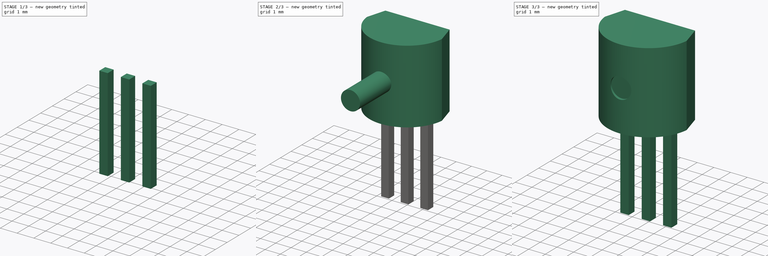
[diagram: build sequence overview — one tinted view per stage of 3, left to right]
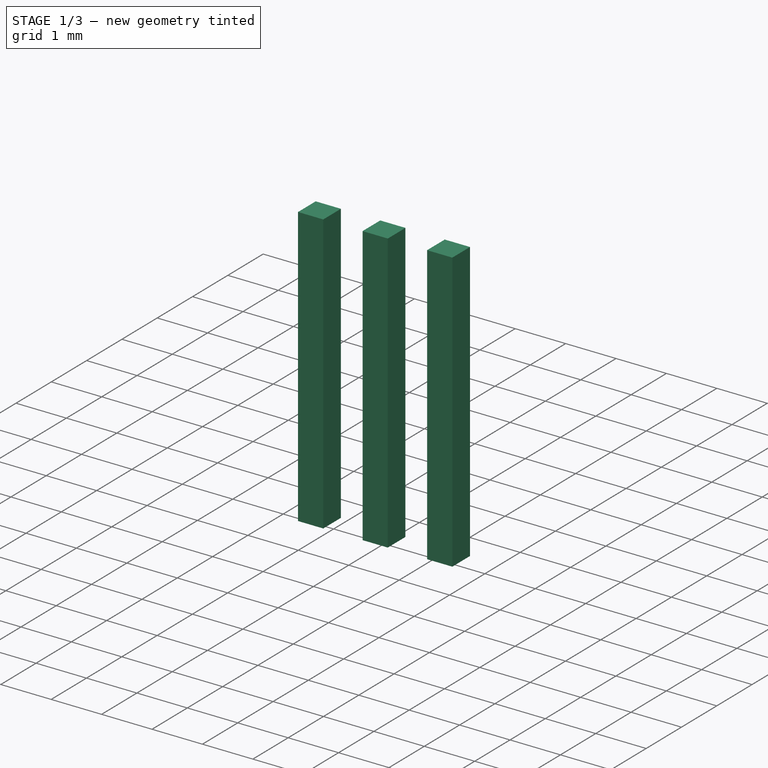
[diagram: stage 1 of 3 — iso view after this stage's code; geometry added in this stage tinted green]
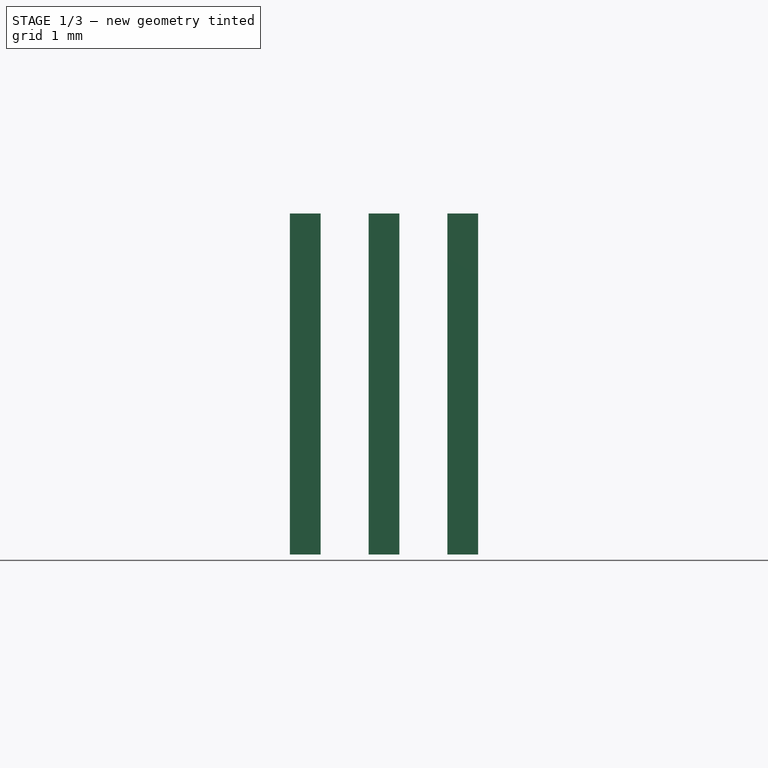
[diagram: stage 1 of 3 — front view after this stage's code; geometry added in this stage tinted green]
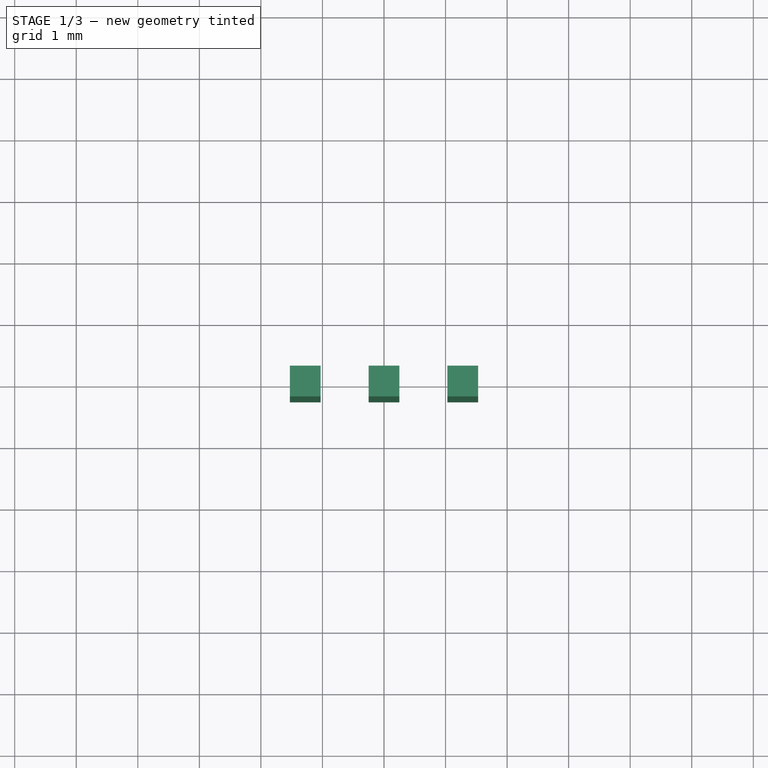
[diagram: stage 1 of 3 — top view after this stage's code; geometry added in this stage tinted green]
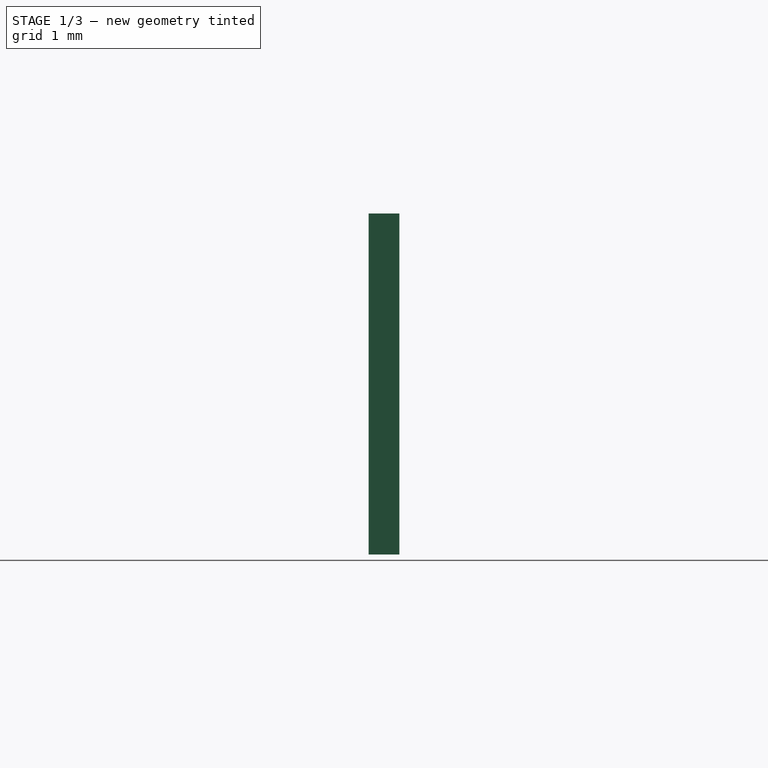
[diagram: stage 1 of 3 — right view after this stage's code; geometry added in this stage tinted green]
FCSTD DOCUMENT  (FreeCAD 0.16R6703 (Git))
Label: TO-92-2
License: All rights reserved
LicenseURL: http://en.wikipedia.org/wiki/All_rights_reserved
objects: Sketcher::SketchObject×2, PartDesign::Pad×2, Part::FeaturePython×2, Part::Cylinder×1, Part::Cut×1, App::DocumentObjectGroup×1
note: 10 computed .brp shape members not serialized (recipe doc carries the construction recipe); baked Part::Feature solids carry a one-line shape summary decoded from their .brp

FEATURE [PartDesign::Pad] Pad001  label="Pins-src"
  Length = 0.5
  Length2 = 100
  Midplane = true
  Placement = pos=(0,0,0) rot=(1,0,0;1.5708rad)
  Sketch = -> Sketch001
  Type = 0
FEATURE [App::DocumentObjectGroup] Group  label="src"
  Group = -> [Cut,Pad001]
FEATURE [Part::FeaturePython] Clone001  label="Pins"  # Draft clone (typed FeaturePython)
  Objects = -> [Pad001]
  Placement = pos=(0,0,0) rot=(1,0,0;1.5708rad)
  Scale = (1,1,1)
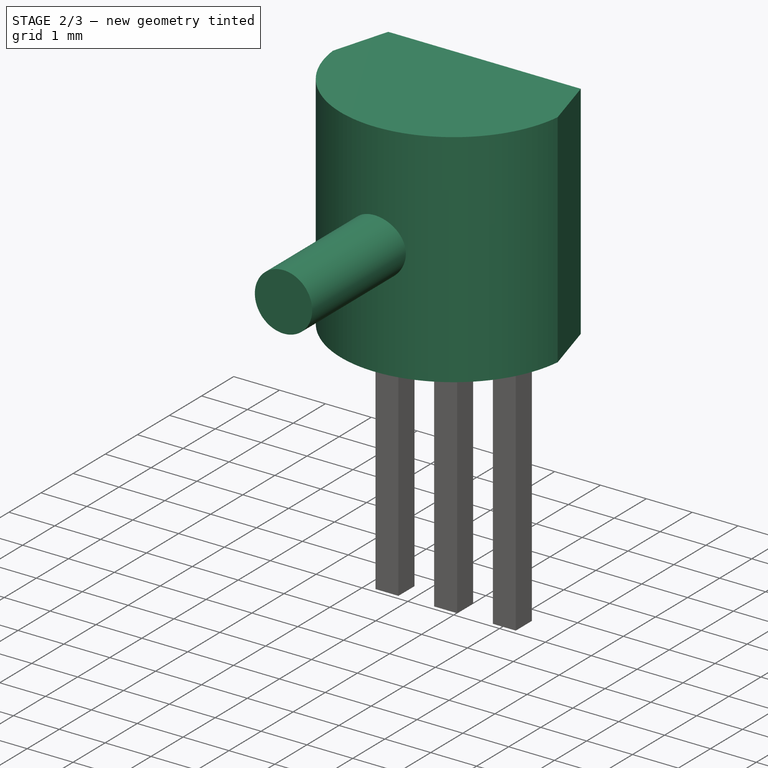
[diagram: stage 2 of 3 — iso view after this stage's code; geometry added in this stage tinted green]
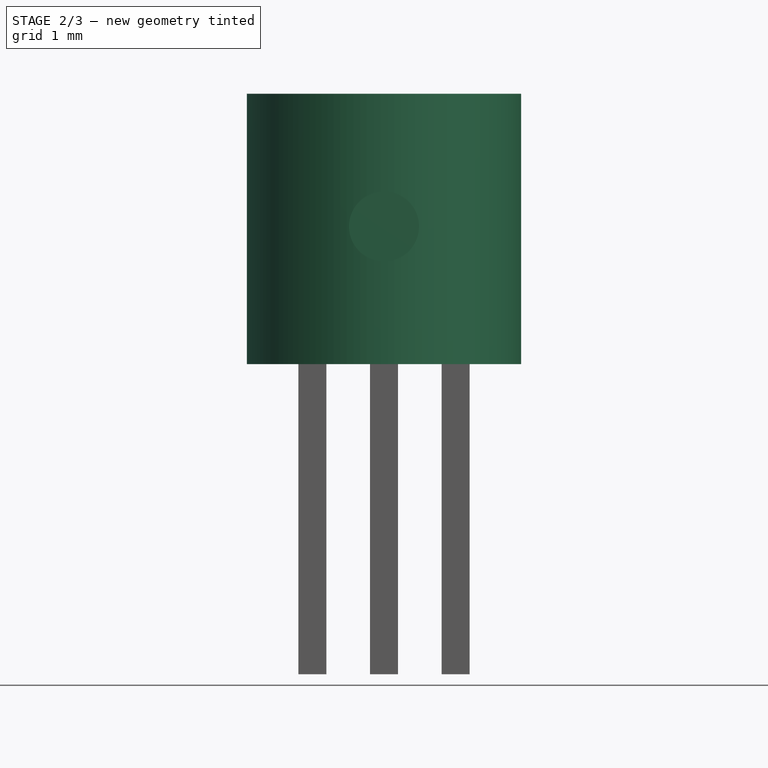
[diagram: stage 2 of 3 — front view after this stage's code; geometry added in this stage tinted green]
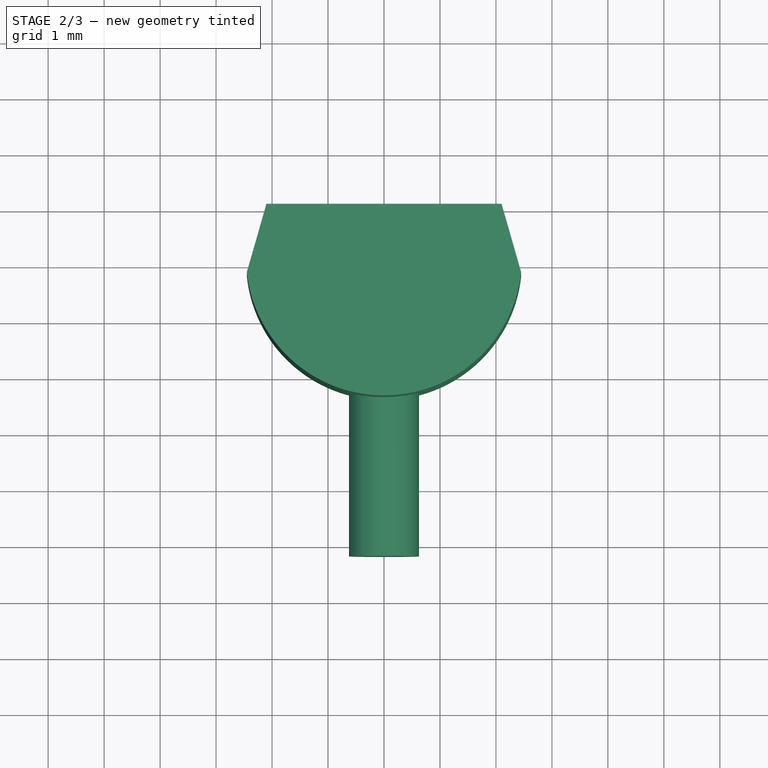
[diagram: stage 2 of 3 — top view after this stage's code; geometry added in this stage tinted green]
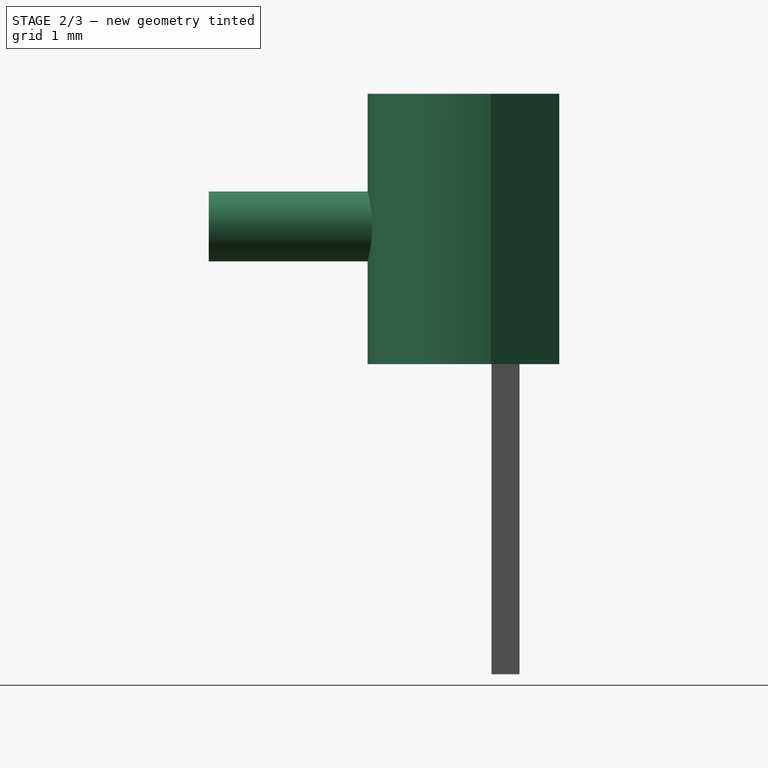
[diagram: stage 2 of 3 — right view after this stage's code; geometry added in this stage tinted green]
FEATURE [Sketcher::SketchObject] Sketch  label="Head-base-sketch"
  Placement = pos=(0,0,2.54) rot=(0,0,1;0rad)
  sketch-geometry (5):
    g0: LineSegment [constr] StartX=-2.45 StartY=-0.26 StartZ=0 EndX=2.45 EndY=-0.26 EndZ=0
    g1: ArcOfCircle CenterX=0 CenterY=0 CenterZ=0 NormalX=0 NormalY=0 NormalZ=1 Radius=2.46376 StartAngle=3.24732 EndAngle=6.17746
    g2: LineSegment StartX=-2.45 StartY=-0.26 StartZ=0 EndX=-2.1 EndY=0.96 EndZ=0
    g3: LineSegment StartX=-2.1 StartY=0.96 StartZ=0 EndX=2.1 EndY=0.96 EndZ=0
    g4: LineSegment StartX=2.1 StartY=0.96 StartZ=0 EndX=2.45 EndY=-0.26 EndZ=0
  constraints (15):
    c: Horizontal(g0)
    c: DistanceY(g0,g-1) = 0.26
    c: DistanceX(g0,g-1) = 2.45
    c: PointOnObject(g1,g-2)
    c: Coincident(g1,g0)
    c: Coincident(g1,g-1)
    c: Coincident(g1,g0)
    c: Coincident(g0,g2)
    c: Coincident(g2,g3)
    c: Horizontal(g3)
    c: Coincident(g3,g4)
    c: Coincident(g4,g0)
    c: Symmetric(g2,g3,g-2)
    c: DistanceX(g2,g-1) = 2.1
    c: DistanceY(g0,g2) = 1.22
FEATURE [PartDesign::Pad] Pad  label="Head-body"
  Length = 4.83
  Length2 = 100
  Placement = pos=(0,0,2.54) rot=(0,0,1;0rad)
  Sketch = -> Sketch
  Type = 0
FEATURE [Part::Cylinder] Cylinder
  Angle = 360
  Height = 3
  Placement = pos=(0,-2.3,5) rot=(1,0,0;1.5708rad)
  Radius = 0.625
  expr: Radius = 1.25 / 2
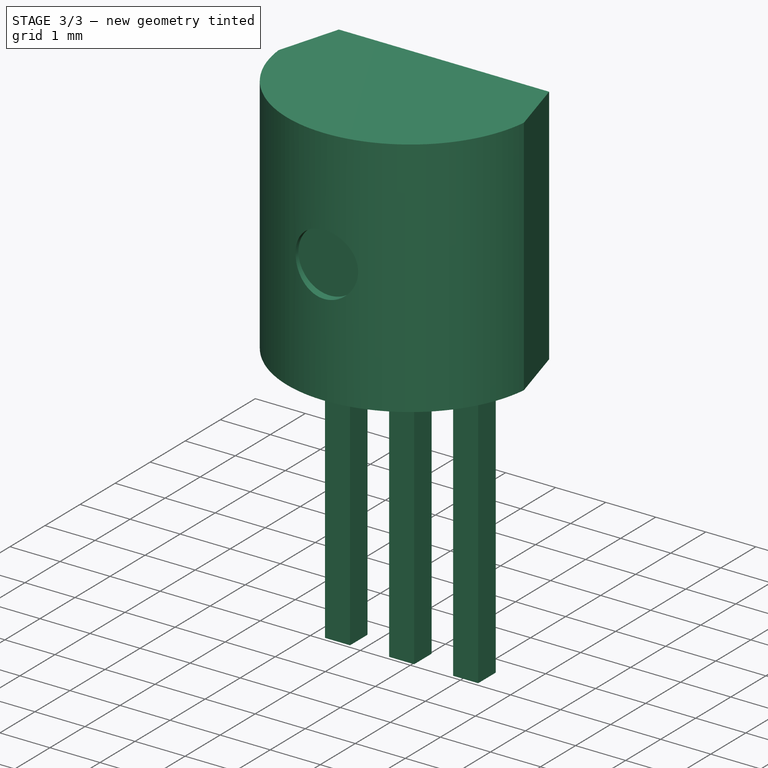
[diagram: stage 3 of 3 — iso view after this stage's code; geometry added in this stage tinted green]
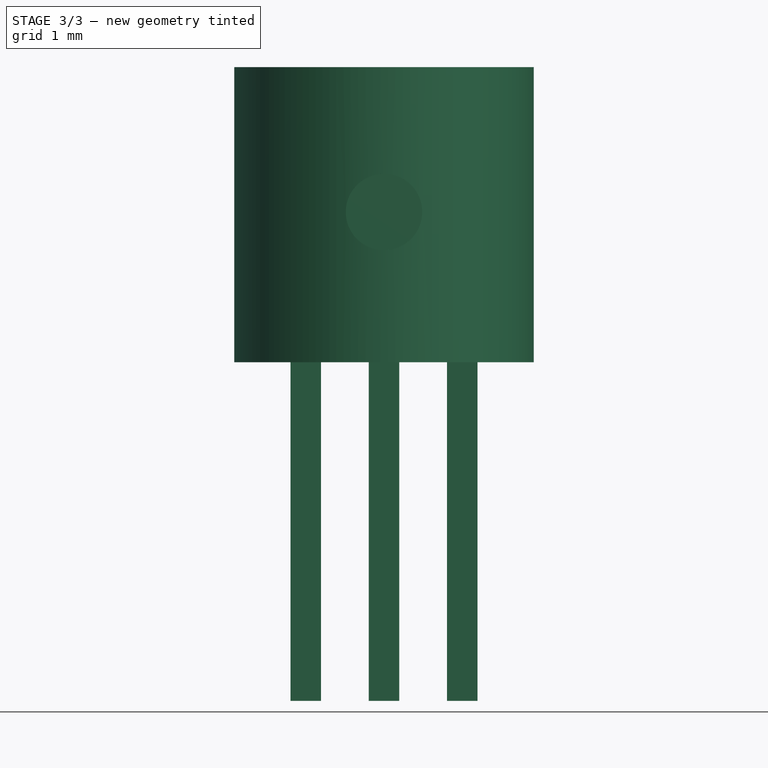
[diagram: stage 3 of 3 — front view after this stage's code; geometry added in this stage tinted green]
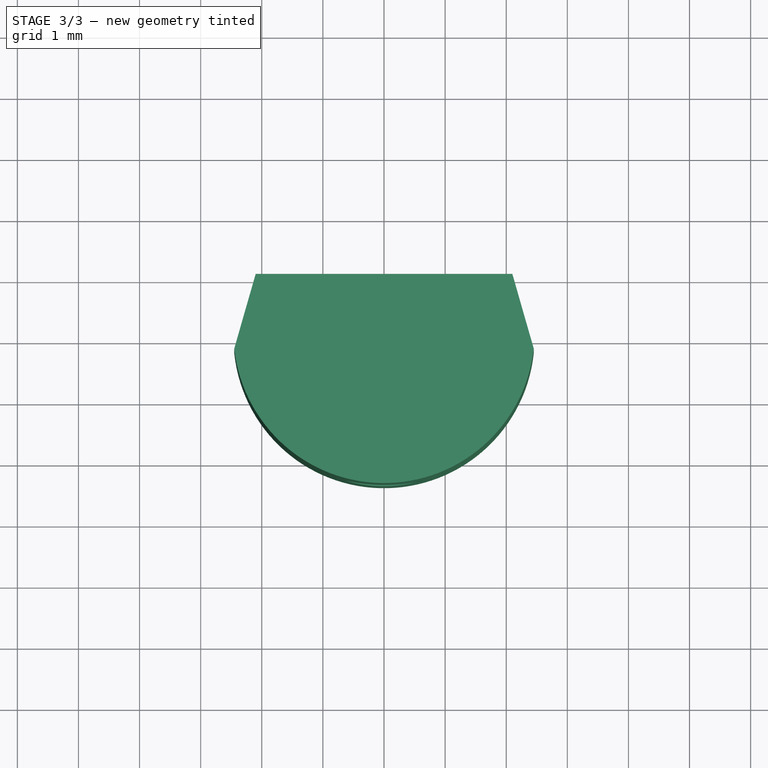
[diagram: stage 3 of 3 — top view after this stage's code; geometry added in this stage tinted green]
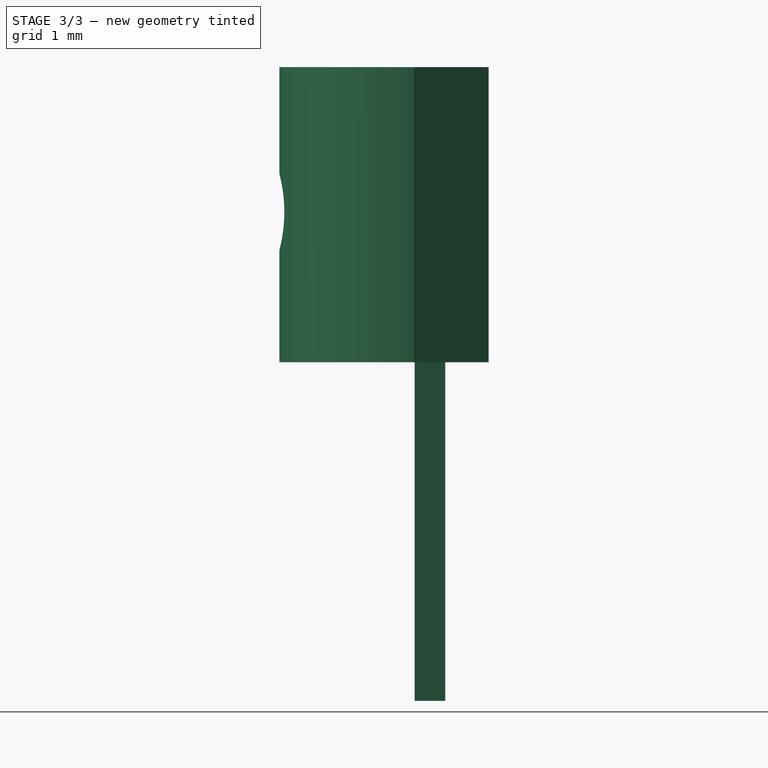
[diagram: stage 3 of 3 — right view after this stage's code; geometry added in this stage tinted green]
FEATURE [Part::Cut] Cut  label="Head-src"
  Base = -> Pad
  Tool = -> Cylinder
FEATURE [Sketcher::SketchObject] Sketch001  label="pins-sketch"
  Placement = pos=(0,0,0) rot=(1,0,0;1.5708rad)
  sketch-geometry (12):
    g0: LineSegment StartX=-0.25 StartY=2.54 StartZ=0 EndX=0.25 EndY=2.54 EndZ=0
    g1: LineSegment StartX=0.25 StartY=2.54 StartZ=0 EndX=0.25 EndY=-3 EndZ=0
    g2: LineSegment StartX=0.25 StartY=-3 StartZ=0 EndX=-0.25 EndY=-3 EndZ=0
    g3: LineSegment StartX=-0.25 StartY=-3 StartZ=0 EndX=-0.25 EndY=2.54 EndZ=0
    g4: LineSegment StartX=-1.53 StartY=2.54 StartZ=0 EndX=-1.03 EndY=2.54 EndZ=0
    g5: LineSegment StartX=-1.03 StartY=2.54 StartZ=0 EndX=-1.03 EndY=-3 EndZ=0
    g6: LineSegment StartX=-1.53 StartY=-3 StartZ=0 EndX=-1.53 EndY=2.54 EndZ=0
    g7: LineSegment StartX=-1.53 StartY=-3 StartZ=0 EndX=-1.03 EndY=-3 EndZ=0
    g8: LineSegment StartX=1.03 StartY=2.54 StartZ=0 EndX=1.53 EndY=2.54 EndZ=0
    g9: LineSegment StartX=1.53 StartY=2.54 StartZ=0 EndX=1.53 EndY=-3 EndZ=0
    g10: LineSegment StartX=1.53 StartY=-3 StartZ=0 EndX=1.03 EndY=-3 EndZ=0
    g11: LineSegment StartX=1.03 StartY=-3 StartZ=0 EndX=1.03 EndY=2.54 EndZ=0
  constraints (35):
    c: Coincident(g0,g1)
    c: Coincident(g1,g2)
    c: Coincident(g2,g3)
    c: Coincident(g3,g0)
    c: Horizontal(g0)
    c: Horizontal(g2)
    c: Vertical(g1)
    c: Vertical(g3)
    c: DistanceX(g0,g0) = 0.5
    c: DistanceY(g1,g1) = 5.54
    c: Coincident(g4,g5)
    c: Coincident(g6,g4)
    c: Horizontal(g4)
    c: Vertical(g5)
    c: Vertical(g6)
    c: PointOnObject(g4,g0)
    c: DistanceY(g-1,g0) = 2.54
    c: DistanceX(g4,g-1) = 1.03
    c: DistanceX(g4,g4) = 0.5
    c: Symmetric(g0,g0,g-2)
    c: Coincident(g7,g6)
    c: Coincident(g7,g5)
    c: Horizontal(g7)
    c: PointOnObject(g5,g2)
    c: Coincident(g8,g9)
    c: Coincident(g9,g10)
    c: Coincident(g10,g11)
    c: Coincident(g11,g8)
    c: Horizontal(g8)
    c: Horizontal(g10)
    c: Vertical(g9)
    c: Vertical(g11)
    c: Symmetric(g8,g4,g-2)
    c: Symmetric(g8,g4,g-2)
    c: PointOnObject(g10,g2)
FEATURE [Part::FeaturePython] Clone  label="Head"  # Draft clone (typed FeaturePython)
  Objects = -> [Cut]
  Scale = (1,1,1)
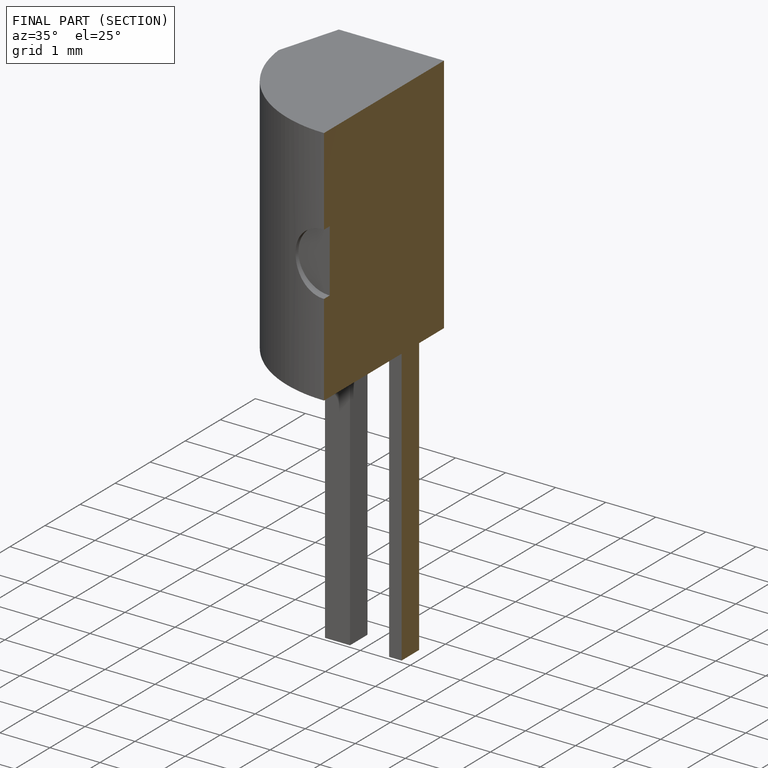
[diagram: finished part — half-section view (interior)]
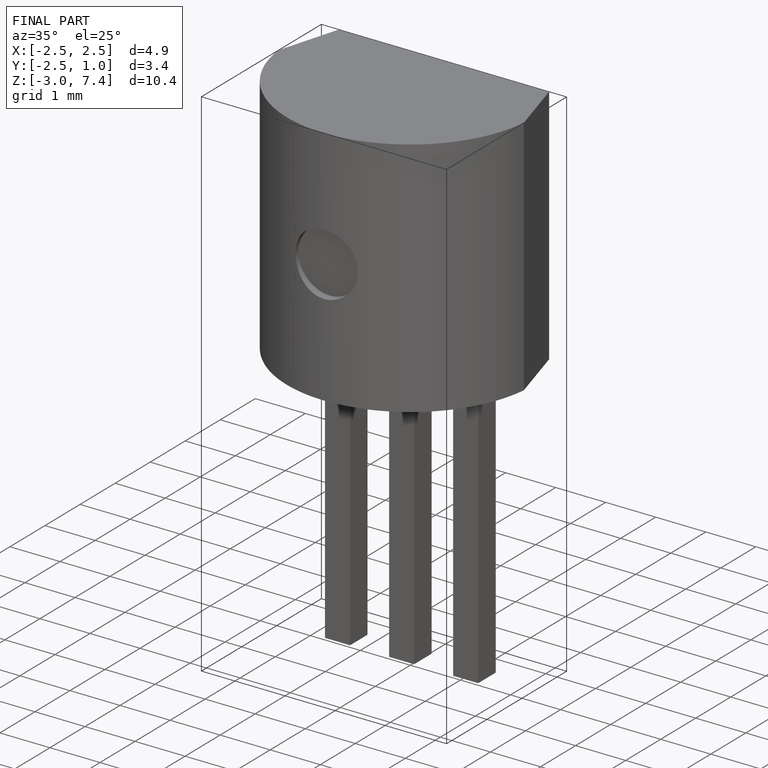
[diagram: finished part — iso view with bounding-box wireframe]
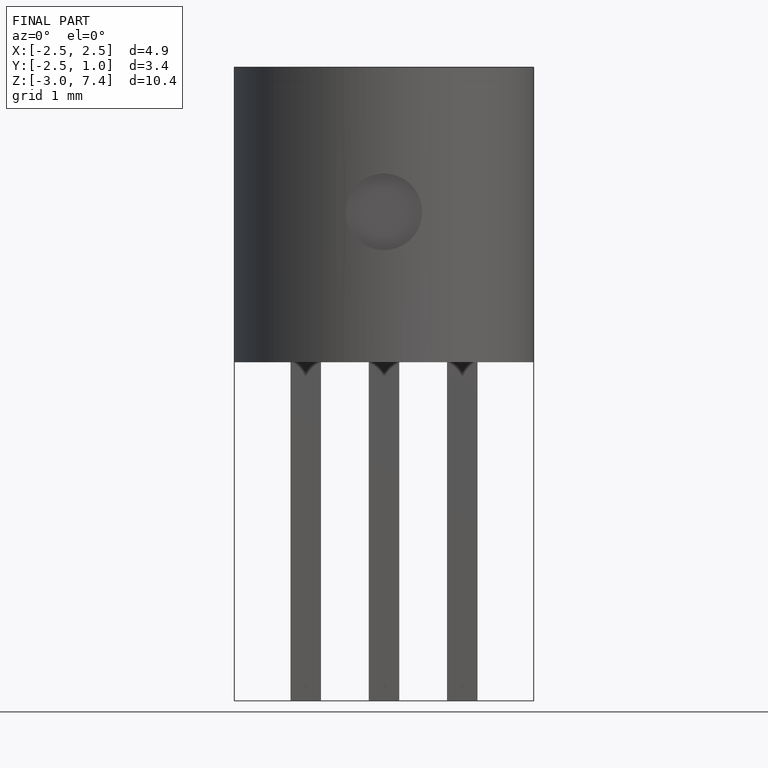
[diagram: finished part — front view with bounding-box wireframe]
